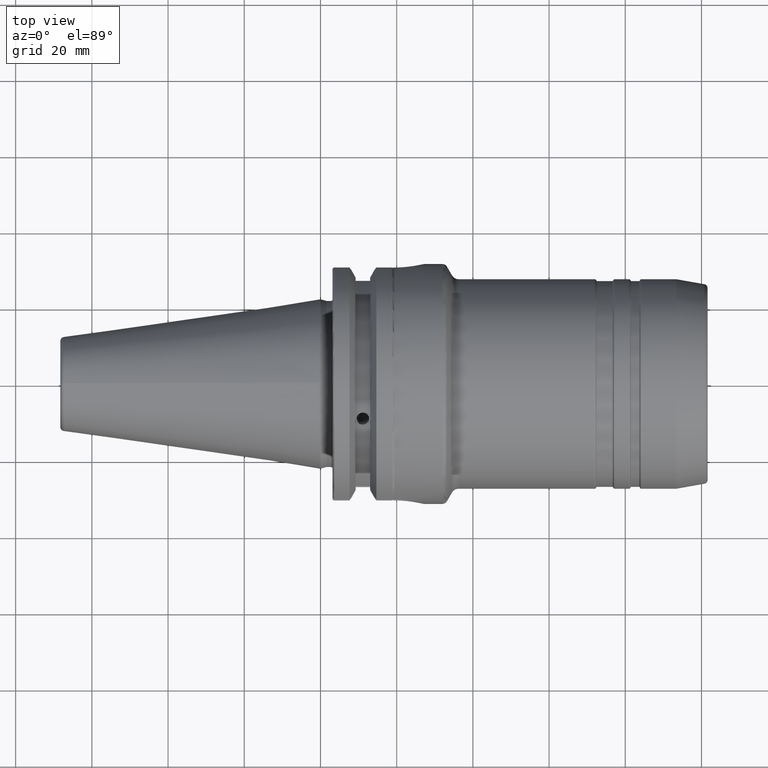
[diagram: clean part render]
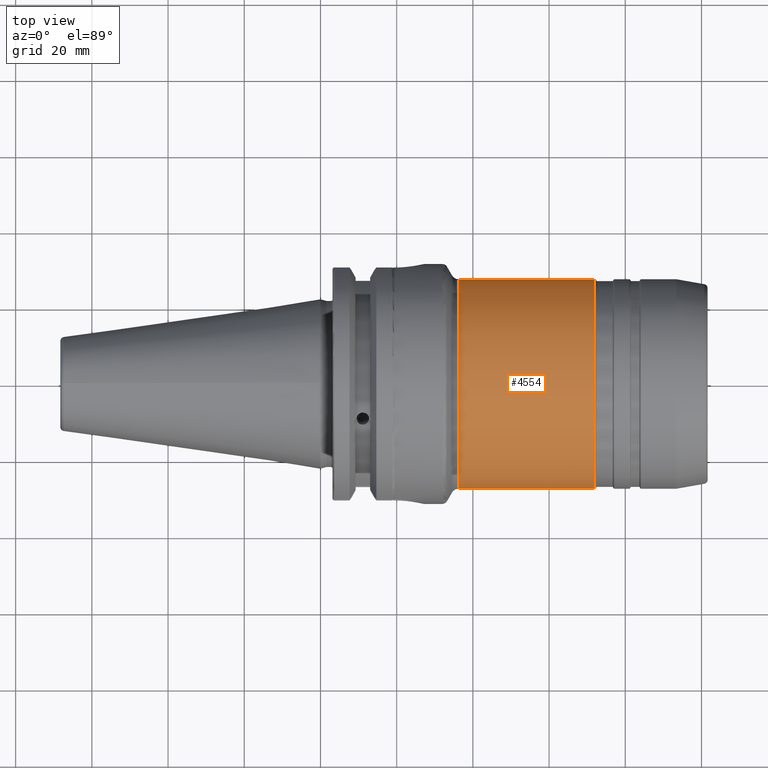
[diagram: same view with one face highlighted and labeled with its STEP entity id]
A machine part, top view. The second image highlights one B-rep face of the part: STEP entity #4554.
In plain terms, the highlighted cylindrical surface (partial cylindrical patch) has radius 27.5 mm, axis along (1, 0, 0).
Its self-contained STEP definition (entity closure, byte-faithful):
#1494=CARTESIAN_POINT('',(3.625470053835E1,0.E0,0.E0));
#1495=DIRECTION('',(1.E0,0.E0,0.E0));
#1496=DIRECTION('',(0.E0,1.E0,0.E0));
#1497=AXIS2_PLACEMENT_3D('',#1494,#1495,#1496);
#1499=DIRECTION('',(1.E0,0.E0,0.E0));
#1500=VECTOR('',#1499,3.571021416554E1);
#1501=CARTESIAN_POINT('',(3.625470053835E1,2.75E1,0.E0));
#1502=LINE('',#1501,#1500);
#1508=DIRECTION('',(1.E0,0.E0,0.E0));
#1509=VECTOR('',#1508,3.571021416554E1);
#1510=CARTESIAN_POINT('',(3.625470053835E1,-2.75E1,0.E0));
#1511=LINE('',#1510,#1509);
#1527=CARTESIAN_POINT('',(7.196491470389E1,0.E0,0.E0));
#1528=DIRECTION('',(1.E0,0.E0,0.E0));
#1529=DIRECTION('',(0.E0,1.E0,0.E0));
#1530=AXIS2_PLACEMENT_3D('',#1527,#1528,#1529);
#2756=CARTESIAN_POINT('',(3.625470053835E1,2.75E1,0.E0));
#2757=VERTEX_POINT('',#2756);
#2758=CARTESIAN_POINT('',(7.196491470389E1,2.75E1,0.E0));
#2759=VERTEX_POINT('',#2758);
#2796=CARTESIAN_POINT('',(3.625470053835E1,-2.75E1,0.E0));
#2797=VERTEX_POINT('',#2796);
#2798=CARTESIAN_POINT('',(7.196491470389E1,-2.75E1,0.E0));
#2799=VERTEX_POINT('',#2798);
#4540=CARTESIAN_POINT('',(0.E0,0.E0,0.E0));
#4541=DIRECTION('',(1.E0,0.E0,0.E0));
#4542=DIRECTION('',(0.E0,-1.E0,0.E0));
#4543=AXIS2_PLACEMENT_3D('',#4540,#4541,#4542);
#4544=CYLINDRICAL_SURFACE('',#4543,2.75E1);
#4546=ORIENTED_EDGE('',*,*,#4545,.T.);
#4548=ORIENTED_EDGE('',*,*,#4547,.T.);
#4550=ORIENTED_EDGE('',*,*,#4549,.F.);
#4551=ORIENTED_EDGE('',*,*,#4533,.F.);
#4552=EDGE_LOOP('',(#4546,#4548,#4550,#4551));
#4553=FACE_OUTER_BOUND('',#4552,.F.);
#4554=ADVANCED_FACE('',(#4553),#4544,.T.);
#1498=CIRCLE('',#1497,2.75E1);
#1531=CIRCLE('',#1530,2.75E1);
#4533=EDGE_CURVE('',#2757,#2797,#1498,.T.);
#4545=EDGE_CURVE('',#2757,#2759,#1502,.T.);
#4547=EDGE_CURVE('',#2759,#2799,#1531,.T.);
#4549=EDGE_CURVE('',#2797,#2799,#1511,.T.);